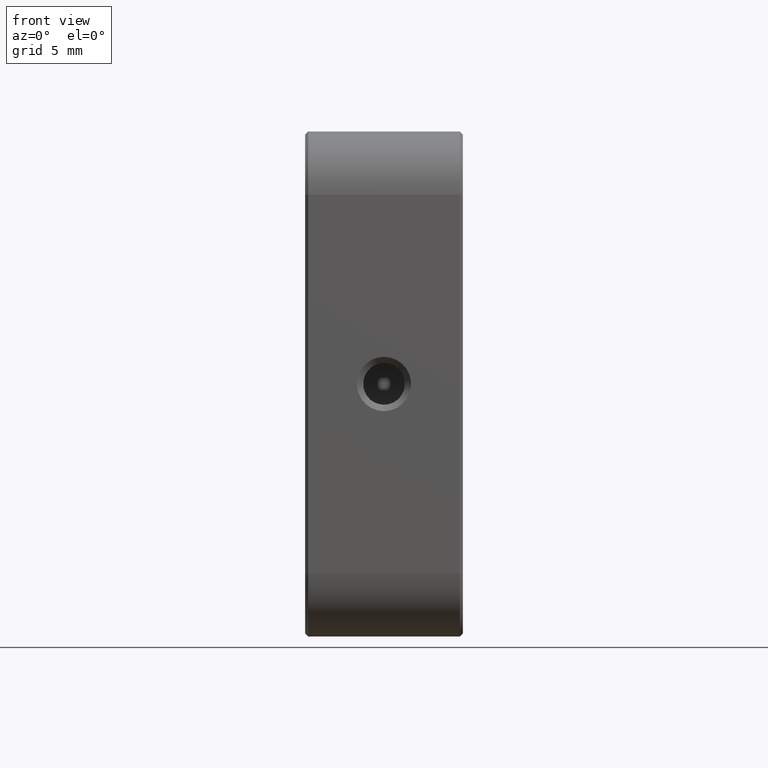
[diagram: clean part render]
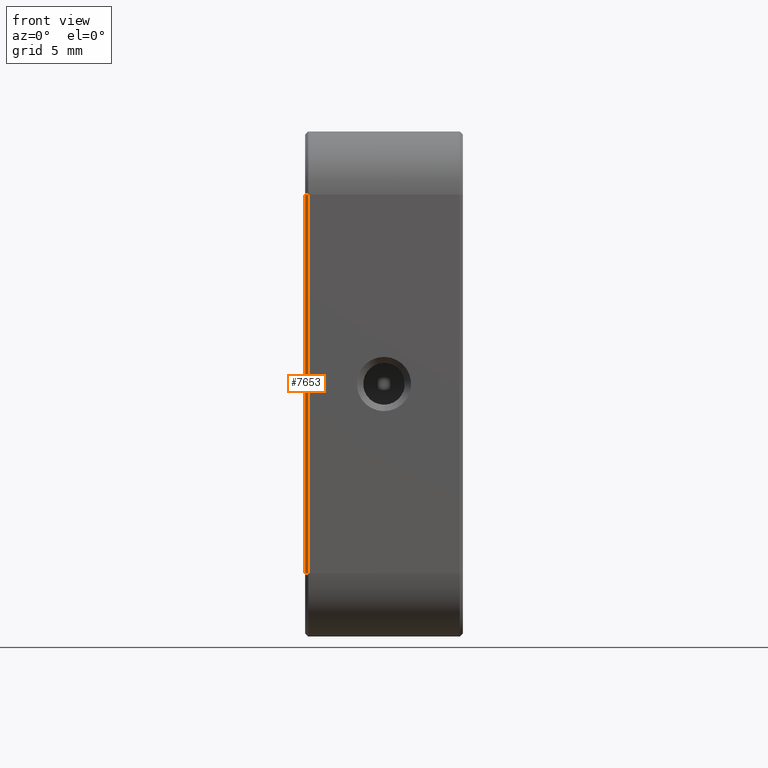
[diagram: same view with one face highlighted and labeled with its STEP entity id]
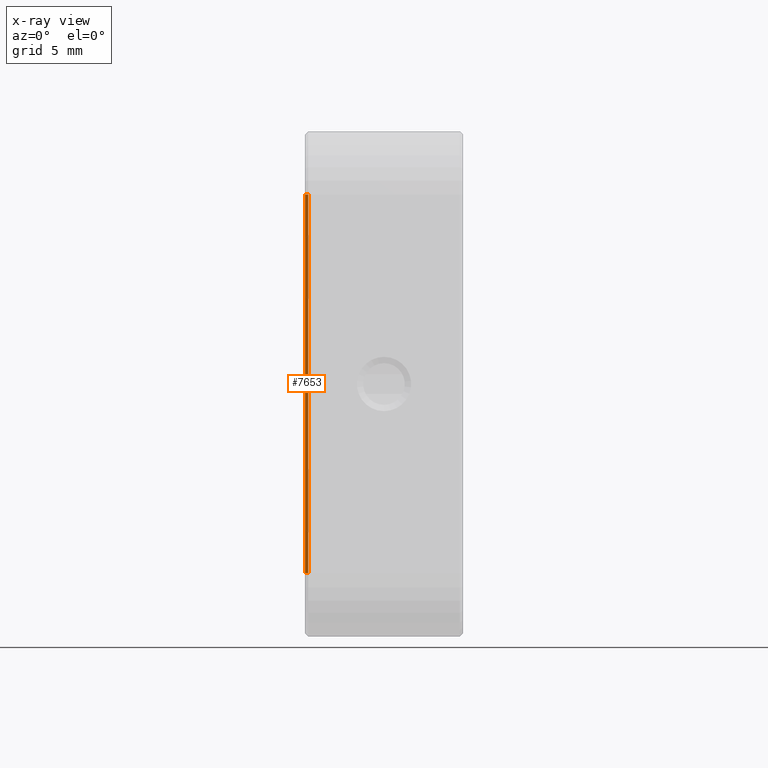
[diagram: x-ray of the same camera — body ghosted, the highlighted face saturated]
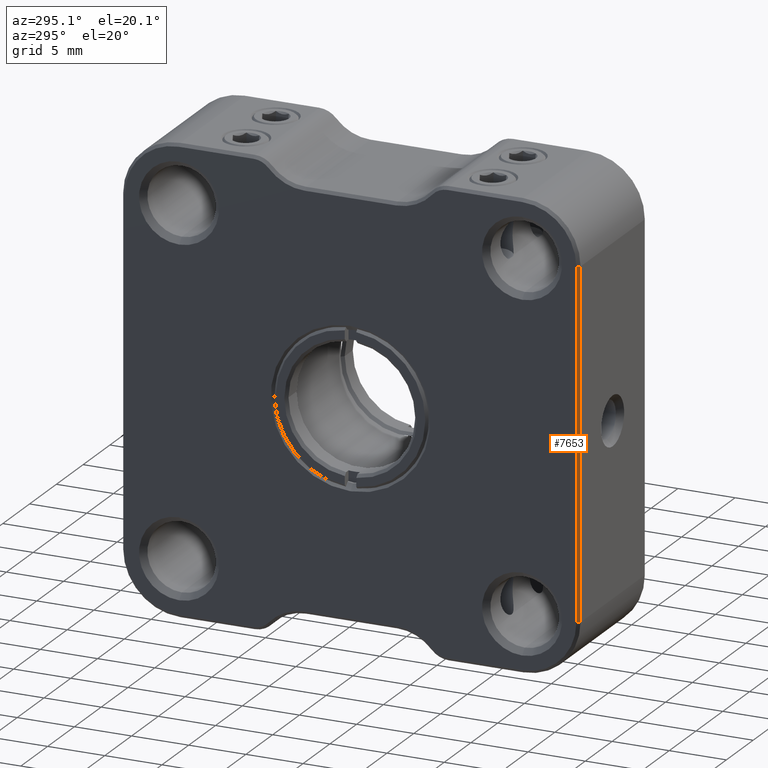
[diagram: same view with one face highlighted and labeled with its STEP entity id]
A machine part, front view. The second image highlights one B-rep face of the part: STEP entity #7653.
The next image is the same camera in x-ray: the body ghosted, the highlighted face saturated — about 0% of this face is hidden behind the body in this view.
A second angle (auxiliary view) of the same face is appended — the face is thin or edge-on in the first view.
In plain terms, the highlighted planar face has unit normal (0.7071, 0.7071, 0).
Its self-contained STEP definition (entity closure, byte-faithful):
#107 = LINE ( 'NONE', #11307, #2498 ) ;
#769 = AXIS2_PLACEMENT_3D ( 'NONE', #13609, #11425, #6960 ) ;
#911 = VERTEX_POINT ( 'NONE', #11695 ) ;
#1105 = FACE_OUTER_BOUND ( 'NONE', #7572, .T. ) ;
#1391 = VERTEX_POINT ( 'NONE', #1628 ) ;
#1587 = LINE ( 'NONE', #1697, #13967 ) ;
#1628 = CARTESIAN_POINT ( 'NONE',  ( -20.95960063692994879, -17.64069877659089869, 25.00000000000000355 ) ) ;
#1697 = CARTESIAN_POINT ( 'NONE',  ( -20.95960063692994879, -17.64069877659089869, 25.00000000000000355 ) ) ;
#2498 = VECTOR ( 'NONE', #4695, 1000.000000000000000 ) ;
#2532 = DIRECTION ( 'NONE',  ( -0.7071067811865574537, 0.7071067811865376918, 0.000000000000000000 ) ) ;
#2558 = ORIENTED_EDGE ( 'NONE', *, *, #3909, .T. ) ;
#3251 = ORIENTED_EDGE ( 'NONE', *, *, #6396, .F. ) ;
#3909 = EDGE_CURVE ( 'NONE', #911, #4750, #4030, .T. ) ;
#4030 = LINE ( 'NONE', #12538, #7274 ) ;
#4308 = CARTESIAN_POINT ( 'NONE',  ( -20.70960063692994169, -17.89069877659089158, 60.00000000000001421 ) ) ;
#4695 = DIRECTION ( 'NONE',  ( 0.000000000000000000, -0.000000000000000000, 1.000000000000000000 ) ) ;
#4750 = VERTEX_POINT ( 'NONE', #12698 ) ;
#4787 = LINE ( 'NONE', #4308, #11023 ) ;
#4900 = DIRECTION ( 'NONE',  ( 0.7071067811865574537, -0.7071067811865376918, 0.000000000000000000 ) ) ;
#6396 = EDGE_CURVE ( 'NONE', #911, #14053, #4787, .T. ) ;
#6960 = DIRECTION ( 'NONE',  ( 0.000000000000000000, 0.000000000000000000, -1.000000000000000000 ) ) ;
#6975 = CARTESIAN_POINT ( 'NONE',  ( -20.70960063692994169, -17.89069877659089158, 25.00000000000000355 ) ) ;
#7274 = VECTOR ( 'NONE', #2532, 999.9999999999998863 ) ;
#7572 = EDGE_LOOP ( 'NONE', ( #2558, #11349, #11225, #3251 ) ) ;
#7653 = ADVANCED_FACE ( 'NONE', ( #1105 ), #11348, .F. ) ;
#8787 = DIRECTION ( 'NONE',  ( 0.000000000000000000, 0.000000000000000000, -1.000000000000000000 ) ) ;
#9297 = EDGE_CURVE ( 'NONE', #1391, #4750, #107, .T. ) ;
#11023 = VECTOR ( 'NONE', #8787, 1000.000000000000000 ) ;
#11225 = ORIENTED_EDGE ( 'NONE', *, *, #13676, .T. ) ;
#11307 = CARTESIAN_POINT ( 'NONE',  ( -20.95960063692994879, -17.64069877659089158, 40.00000000000001421 ) ) ;
#11348 = PLANE ( 'NONE',  #769 ) ;
#11349 = ORIENTED_EDGE ( 'NONE', *, *, #9297, .F. ) ;
#11425 = DIRECTION ( 'NONE',  ( 0.7071067811865376918, 0.7071067811865573427, 0.000000000000000000 ) ) ;
#11695 = CARTESIAN_POINT ( 'NONE',  ( -20.70960063692994169, -17.89069877659089158, 55.00000000000000711 ) ) ;
#12538 = CARTESIAN_POINT ( 'NONE',  ( -20.70960063692994169, -17.89069877659089158, 55.00000000000000711 ) ) ;
#12698 = CARTESIAN_POINT ( 'NONE',  ( -20.95960063692994879, -17.64069877659089158, 55.00000000000000711 ) ) ;
#13609 = CARTESIAN_POINT ( 'NONE',  ( -20.70960063692994169, -17.89069877659089158, 60.00000000000001421 ) ) ;
#13676 = EDGE_CURVE ( 'NONE', #1391, #14053, #1587, .T. ) ;
#13967 = VECTOR ( 'NONE', #4900, 999.9999999999998863 ) ;
#14053 = VERTEX_POINT ( 'NONE', #6975 ) ;